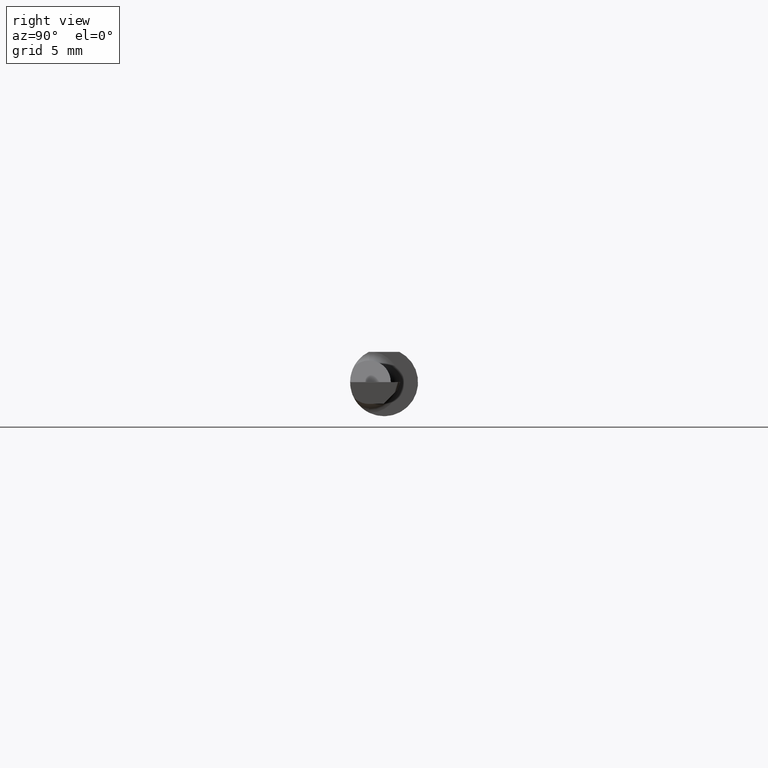
[diagram: clean part render]
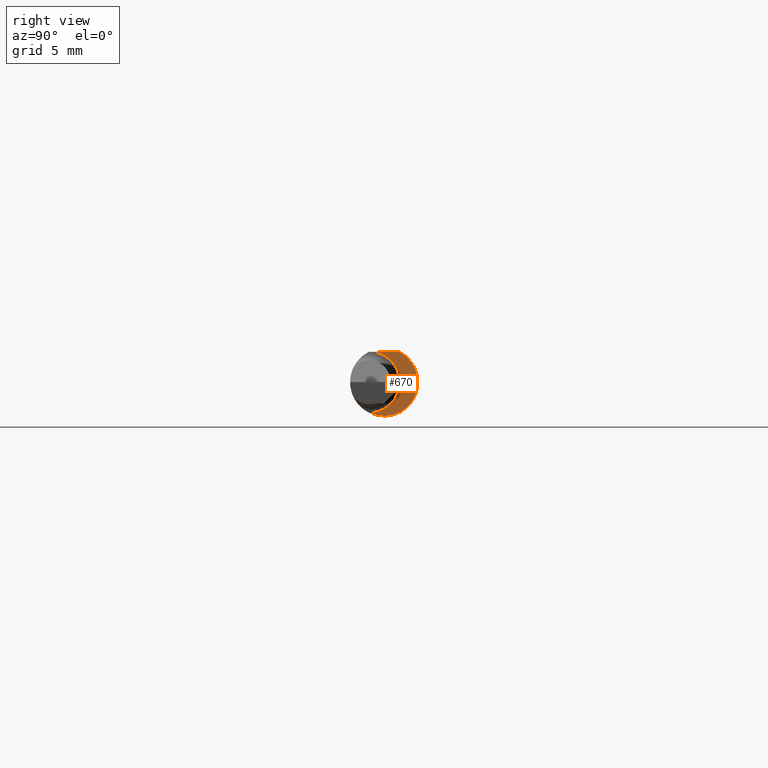
[diagram: same view with one face highlighted and labeled with its STEP entity id]
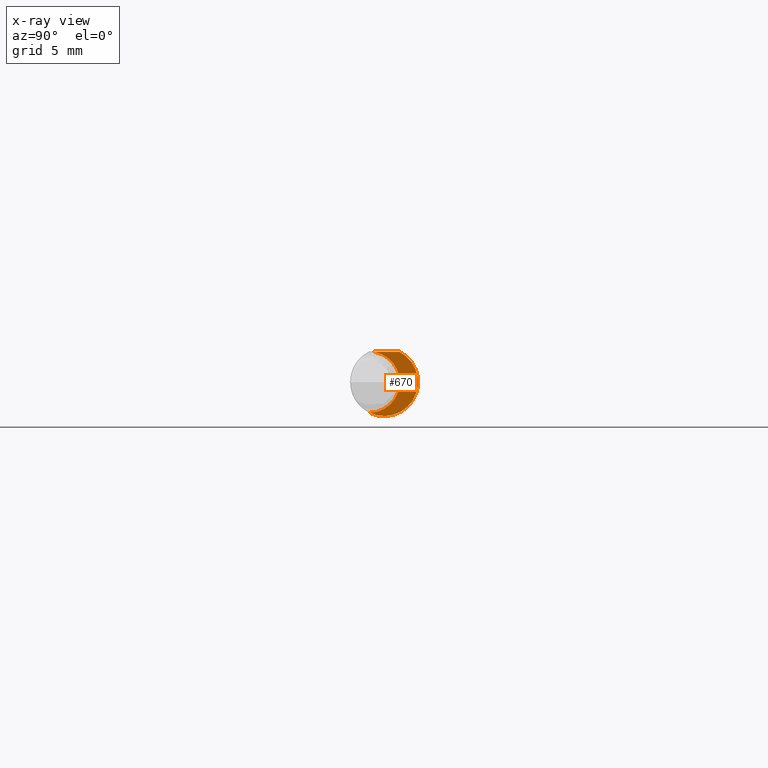
[diagram: x-ray of the same camera — body ghosted, the highlighted face saturated]
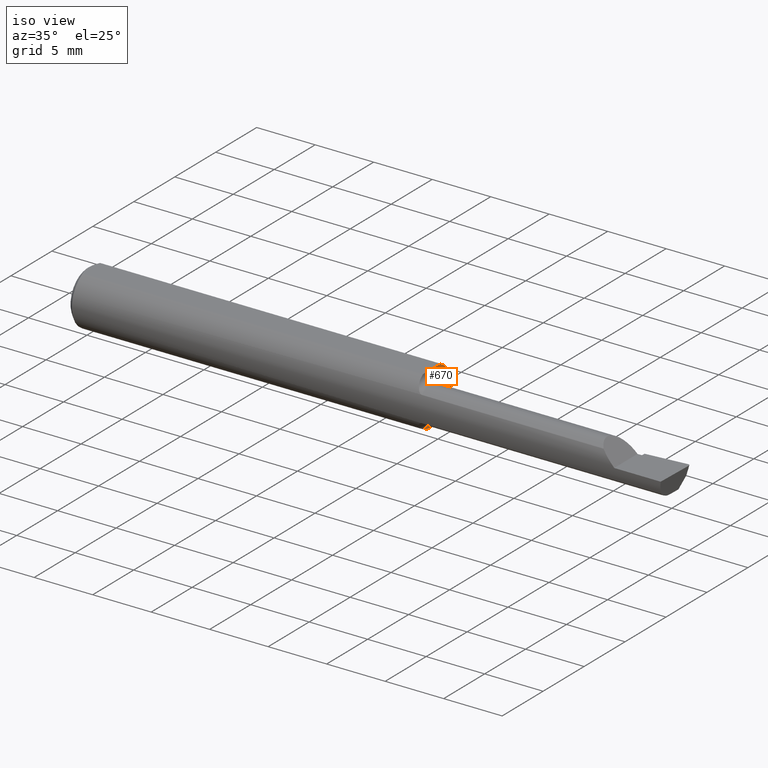
[diagram: same view with one face highlighted and labeled with its STEP entity id]
A machine part, right view. The second image highlights one B-rep face of the part: STEP entity #670.
The next image is the same camera in x-ray: the body ghosted, the highlighted face saturated — about 0% of this face is hidden behind the body in this view.
A second angle (iso view) of the same face is appended — the face is thin or edge-on in the first view.
In plain terms, the highlighted planar face has unit normal (1, 0, 0).
Its self-contained STEP definition (entity closure, byte-faithful):
#6 = AXIS2_PLACEMENT_3D ( 'NONE', #649, #427, #187 ) ;
#46 = EDGE_CURVE ( 'NONE', #476, #238, #648, .T. ) ;
#47 = CIRCLE ( 'NONE', #177, 0.08489999999999991998 ) ;
#67 = CARTESIAN_POINT ( 'NONE',  ( 1.160000000000000142, -0.03946024096385560009, -0.08487549341873927566 ) ) ;
#100 = AXIS2_PLACEMENT_3D ( 'NONE', #362, #481, #229 ) ;
#119 = PLANE ( 'NONE',  #100 ) ;
#177 = AXIS2_PLACEMENT_3D ( 'NONE', #643, #513, #607 ) ;
#187 = DIRECTION ( 'NONE',  ( 0.0000000000000000000, 0.0000000000000000000, -1.000000000000000000 ) ) ;
#197 = EDGE_CURVE ( 'NONE', #238, #610, #47, .T. ) ;
#217 = DIRECTION ( 'NONE',  ( 0.0000000000000000000, -1.000000000000000000, 1.189000693621284344E-16 ) ) ;
#229 = DIRECTION ( 'NONE',  ( 0.0000000000000000000, 0.0000000000000000000, -1.000000000000000000 ) ) ;
#238 = VERTEX_POINT ( 'NONE', #331 ) ;
#247 = CARTESIAN_POINT ( 'NONE',  ( 1.160000000000000142, 0.1436000000000000332, 0.08359999999999999376 ) ) ;
#294 = FACE_OUTER_BOUND ( 'NONE', #685, .T. ) ;
#331 = CARTESIAN_POINT ( 'NONE',  ( 1.160000000000000142, -0.02669966216601849310, 0.08360000000000000764 ) ) ;
#337 = ORIENTED_EDGE ( 'NONE', *, *, #46, .T. ) ;
#340 = ORIENTED_EDGE ( 'NONE', *, *, #197, .T. ) ;
#362 = CARTESIAN_POINT ( 'NONE',  ( 1.160000000000000142, 0.04339999999999992475, 0.0000000000000000000 ) ) ;
#427 = DIRECTION ( 'NONE',  ( 1.000000000000000000, 0.0000000000000000000, 0.0000000000000000000 ) ) ;
#476 = VERTEX_POINT ( 'NONE', #716 ) ;
#481 = DIRECTION ( 'NONE',  ( 1.000000000000000000, 0.0000000000000000000, 0.0000000000000000000 ) ) ;
#513 = DIRECTION ( 'NONE',  ( -1.000000000000000000, -0.0000000000000000000, -0.0000000000000000000 ) ) ;
#569 = ORIENTED_EDGE ( 'NONE', *, *, #678, .T. ) ;
#607 = DIRECTION ( 'NONE',  ( 0.0000000000000000000, 0.0000000000000000000, 1.000000000000000000 ) ) ;
#610 = VERTEX_POINT ( 'NONE', #67 ) ;
#627 = CIRCLE ( 'NONE', #6, 0.09360000000000001652 ) ;
#643 = CARTESIAN_POINT ( 'NONE',  ( 1.160000000000000142, -0.04150000000000000216, 0.0000000000000000000 ) ) ;
#648 = LINE ( 'NONE', #247, #667 ) ;
#649 = CARTESIAN_POINT ( 'NONE',  ( 1.160000000000000142, 0.0000000000000000000, 0.0000000000000000000 ) ) ;
#667 = VECTOR ( 'NONE', #217, 39.37007874015748143 ) ;
#670 = ADVANCED_FACE ( 'NONE', ( #294 ), #119, .T. ) ;
#678 = EDGE_CURVE ( 'NONE', #610, #476, #627, .T. ) ;
#685 = EDGE_LOOP ( 'NONE', ( #569, #337, #340 ) ) ;
#716 = CARTESIAN_POINT ( 'NONE',  ( 1.160000000000000142, 0.04209513035969836975, 0.08360000000000000764 ) ) ;